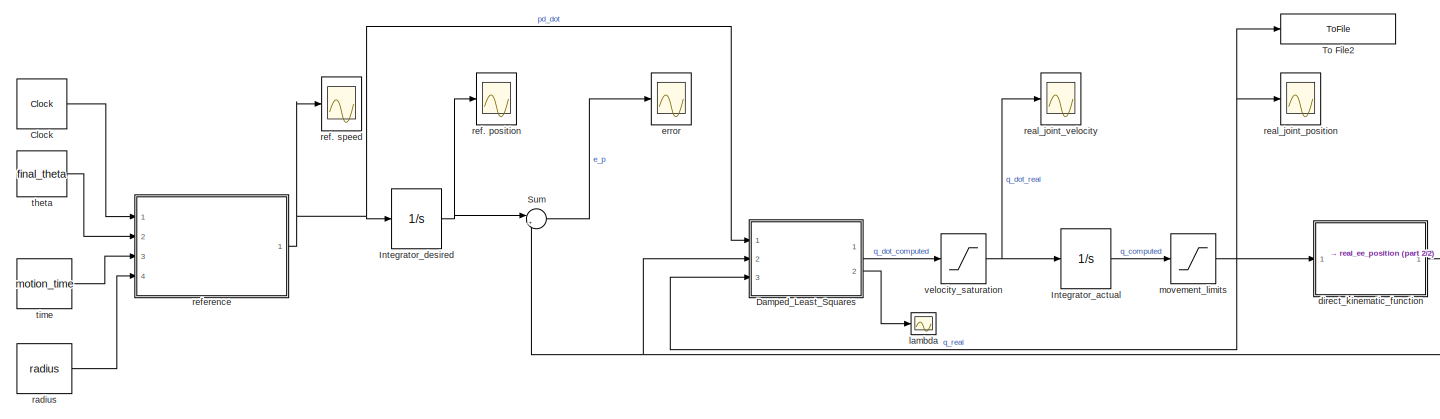
[diagram: root canvas - part 1/2, most of the canvas]
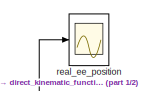
[diagram: root canvas - part 2/2, top right region]
MODEL slx_b3d0beb6caae
KIND model
CONFIG AbsTol = auto
CONFIG EnableMultiTasking = off
CONFIG FixedStep = step
CONFIG MaxStep = auto
CONFIG MinStep = auto
CONFIG RelTol = 1e-3
CONFIG SampleTimeConstraint = Unconstrained
CONFIG Solver = ode4
CONFIG SolverName = ode4
CONFIG StartTime = 0.0
CONFIG StopTime = t_sim
BLOCK [Clock] Clock
  DisplayTime = on
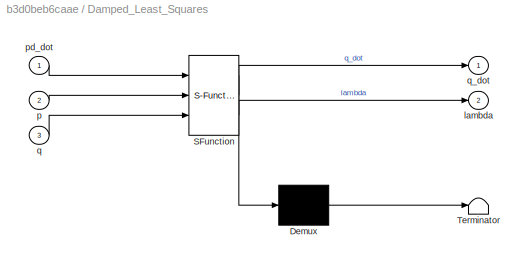
BLOCK [SubSystem] Damped_Least_Squares
  ErrorFcn = Stateflow.Translate.translate
  PermitHierarchicalResolution = ExplicitOnly
  Ports = [3, 2]
  RequestExecContextInheritance = off
  SFBlockType = MATLAB Function
  TreatAsAtomicUnit = on
  Variant = off
BLOCK [Demux] Damped_Least_Squares/ Demux 
  Outputs = 1
  Ports = [1, 1]
BLOCK [S-Function] Damped_Least_Squares/ SFunction 
  EnableBusSupport = on
  FunctionName = sf_sfun
  PortCounts = [3 3]
  Ports = [3, 3]
  SFcnIsStateOwnerBlock = off
  SFunctionDeploymentMode = off
  Tag = Stateflow S-Function simulazione_008_s 1
BLOCK [Terminator] Damped_Least_Squares/ Terminator 
BLOCK [Outport] Damped_Least_Squares/lambda
  IconDisplay = Port number
  Port = 2
BLOCK [Inport] Damped_Least_Squares/p
  IconDisplay = Port number
  Port = 2
BLOCK [Inport] Damped_Least_Squares/pd_dot
  IconDisplay = Port number
BLOCK [Inport] Damped_Least_Squares/q
  IconDisplay = Port number
  Port = 3
BLOCK [Outport] Damped_Least_Squares/q_dot
  IconDisplay = Port number
BLOCK [Integrator] Integrator_actual
  InitialCondition = q_init
  Ports = [1, 1]
BLOCK [Integrator] Integrator_desired
  InitialCondition = p_init
  Ports = [1, 1]
BLOCK [Sum] Sum
  IconShape = round
  InputSameDT = off
  Inputs = |+-
  OutDataTypeStr = Inherit: Inherit via internal rule
  Ports = [2, 1]
  SaturateOnIntegerOverflow = off
BLOCK [ToFile] To File2
  Filename = joint_position.mat
  MatrixName = q
  Ports = [1]
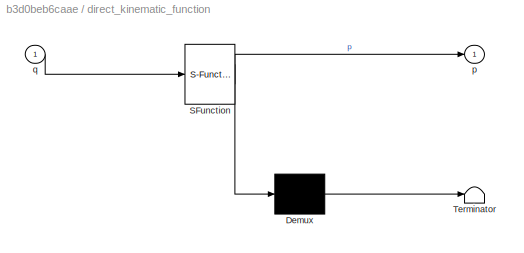
BLOCK [SubSystem] direct_kinematic_function
  ErrorFcn = Stateflow.Translate.translate
  PermitHierarchicalResolution = ExplicitOnly
  Ports = [1, 1]
  RequestExecContextInheritance = off
  SFBlockType = MATLAB Function
  TreatAsAtomicUnit = on
  Variant = off
BLOCK [Demux] direct_kinematic_function/ Demux 
  Outputs = 1
  Ports = [1, 1]
BLOCK [S-Function] direct_kinematic_function/ SFunction 
  EnableBusSupport = on
  FunctionName = sf_sfun
  PortCounts = [1 2]
  Ports = [1, 2]
  SFcnIsStateOwnerBlock = off
  SFunctionDeploymentMode = off
  Tag = Stateflow S-Function simulazione_008_s 3
BLOCK [Terminator] direct_kinematic_function/ Terminator 
BLOCK [Outport] direct_kinematic_function/p
  IconDisplay = Port number
BLOCK [Inport] direct_kinematic_function/q
  IconDisplay = Port number
BLOCK [Scope] error
  NumInputPorts = 1
  Ports = [1]
  ScopeSpecificationString = Simulink.scopes.TimeScopeBlockCfg('CurrentConfiguration', extmgr.ConfigurationSet(extmgr.Configuration('Core','General UI',true,'FigureColor',[1 1 1]),extmgr.Configuration('Core','Source UI',true),extmgr.Configuration('Sources','WiredSimulink',true,'DataLoggingVariableName','ScopeData1'),extmgr.Configuration('Visuals','Time Domain',true,'SerializedDisplays',{struct('MinYLimReal','-0.04718','MaxYLi...<+2266ch>
BLOCK [Scope] lambda
  NumInputPorts = 1
  Ports = [1]
  ScopeSpecificationString = Simulink.scopes.TimeScopeBlockCfg('CurrentConfiguration', extmgr.ConfigurationSet(extmgr.Configuration('Core','General UI',true,'FigureColor',[1 1 1]),extmgr.Configuration('Core','Source UI',true),extmgr.Configuration('Sources','WiredSimulink',true,'DataLoggingVariableName','ScopeData1'),extmgr.Configuration('Visuals','Time Domain',true,'SerializedDisplays',{struct('MinYLimReal','-0.000001','MaxYL...<+1578ch>
BLOCK [Saturate] movement_limits
  InputPortMap = u0
  LowerLimit = movement_lower_limit
  Ports = [1, 1]
  UpperLimit = movement_upper_limit
BLOCK [Constant] radius
  Value = radius
BLOCK [Scope] real_ee_position
  NumInputPorts = 1
  Ports = [1]
  ScopeSpecificationString = Simulink.scopes.TimeScopeBlockCfg('CurrentConfiguration', extmgr.ConfigurationSet(extmgr.Configuration('Core','General UI',true),extmgr.Configuration('Core','Source UI',true),extmgr.Configuration('Sources','WiredSimulink',true,'DataLoggingVariableName','ScopeData3'),extmgr.Configuration('Visuals','Time Domain',true,'SerializedDisplays',{struct('MinYLimReal','-3.92691','MaxYLimReal','3.92639','YLab...<+1605ch>
BLOCK [Scope] real_joint_position
  NumInputPorts = 1
  Ports = [1]
  ScopeSpecificationString = Simulink.scopes.TimeScopeBlockCfg('CurrentConfiguration', extmgr.ConfigurationSet(extmgr.Configuration('Core','General UI',true,'FigureColor',[0 0 0]),extmgr.Configuration('Core','Source UI',true),extmgr.Configuration('Sources','WiredSimulink',true,'DataLoggingVariableName','ScopeData1'),extmgr.Configuration('Visuals','Time Domain',true,'SerializedDisplays',{struct('MinYLimReal','-2.0525','MaxYLim...<+1538ch>
BLOCK [Scope] real_joint_velocity
  NumInputPorts = 1
  Ports = [1]
  ScopeSpecificationString = Simulink.scopes.TimeScopeBlockCfg('CurrentConfiguration', extmgr.ConfigurationSet(extmgr.Configuration('Core','General UI',true,'FigureColor',[1 1 1]),extmgr.Configuration('Core','Source UI',true),extmgr.Configuration('Sources','WiredSimulink',true,'DataLoggingVariableName','ScopeData2'),extmgr.Configuration('Visuals','Time Domain',true,'SerializedDisplays',{struct('MinYLimReal','-3.92699','MaxYLi...<+2256ch>
BLOCK [Scope] ref. position
  NumInputPorts = 1
  Ports = [1]
  ScopeSpecificationString = Simulink.scopes.TimeScopeBlockCfg('CurrentConfiguration', extmgr.ConfigurationSet(extmgr.Configuration('Core','General UI',true),extmgr.Configuration('Core','Source UI',true),extmgr.Configuration('Sources','WiredSimulink',true,'DataLoggingVariableName','ScopeData1'),extmgr.Configuration('Visuals','Time Domain',true,'SerializedDisplays',{struct('MinYLimReal','-2.89457','MaxYLimReal','3.00704','YLab...<+1538ch>
BLOCK [Scope] ref. speed
  NumInputPorts = 1
  Ports = [1]
  ScopeSpecificationString = Simulink.scopes.TimeScopeBlockCfg('CurrentConfiguration', extmgr.ConfigurationSet(extmgr.Configuration('Core','General UI',true),extmgr.Configuration('Core','Source UI',true),extmgr.Configuration('Sources','WiredSimulink',true),extmgr.Configuration('Visuals','Time Domain',true,'SerializedDisplays',{struct('MinYLimReal','-0.10527','MaxYLimReal','0.36076','YLabelReal','','MinYLimMag','0.00000','MaxY...<+1427ch>
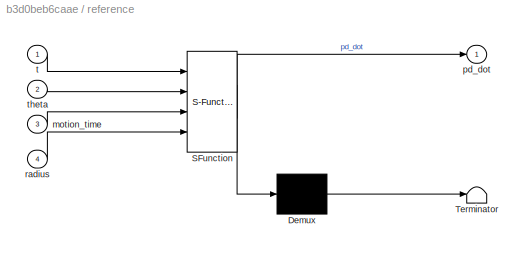
BLOCK [SubSystem] reference
  ErrorFcn = Stateflow.Translate.translate
  PermitHierarchicalResolution = ExplicitOnly
  Ports = [4, 1]
  RequestExecContextInheritance = off
  SFBlockType = MATLAB Function
  TreatAsAtomicUnit = on
  Variant = off
BLOCK [Demux] reference/ Demux 
  Outputs = 1
  Ports = [1, 1]
BLOCK [S-Function] reference/ SFunction 
  EnableBusSupport = on
  FunctionName = sf_sfun
  PortCounts = [4 2]
  Ports = [4, 2]
  SFcnIsStateOwnerBlock = off
  SFunctionDeploymentMode = off
  Tag = Stateflow S-Function simulazione_008_s 2
BLOCK [Terminator] reference/ Terminator 
BLOCK [Inport] reference/motion_time
  IconDisplay = Port number
  Port = 3
BLOCK [Outport] reference/pd_dot
  IconDisplay = Port number
BLOCK [Inport] reference/radius
  IconDisplay = Port number
  Port = 4
BLOCK [Inport] reference/t
  IconDisplay = Port number
BLOCK [Inport] reference/theta
  IconDisplay = Port number
  Port = 2
BLOCK [Constant] theta
  Value = final_theta
BLOCK [Constant] time
  Value = motion_time
BLOCK [Saturate] velocity_saturation
  InputPortMap = u0
  LowerLimit = velocity_lower_limit
  Ports = [1, 1]
  UpperLimit = velocity_upper_limit
LINE Clock:1 -> reference:1
LINE Damped_Least_Squares:1 -> velocity_saturation:1
LINE Damped_Least_Squares:2 -> lambda:1
LINE Integrator_actual:1 -> movement_limits:1
NET Integrator_desired:1 -> Sum:1, ref. position:1
LINE Sum:1 -> error:1
NET direct_kinematic_function:1 -> Damped_Least_Squares:2, Sum:2, real_ee_position:1
NET movement_limits:1 -> Damped_Least_Squares:3, To File2:1, direct_kinematic_function:1, real_joint_position:1
LINE radius:1 -> reference:4
NET reference:1 -> Damped_Least_Squares:1, Integrator_desired:1, ref. speed:1
LINE theta:1 -> reference:2
LINE time:1 -> reference:3
NET velocity_saturation:1 -> Integrator_actual:1, real_joint_velocity:1
note: NET lines group one-source signal fan-out (src -> all destinations, sorted); 1:1 wires keep LINE
CHART Damped_Least_Squares states=1 transitions=1
  STATE_LABEL 'eML_blk_kernel()'
  STATE_LABEL 'SCRIPT:\nfunction [q_dot, lambda] = dls(pd_dot, p, q)\n\n    Jg = geometric_jacobian(q);\n    Ja = analytic_jacobian(Jg, p);\n    \n    s = svd(Ja);\n    sigma_th = 1/pi;\n    sigma = s(6);\n    lambda_max = 0.00008;\n    \n    if sigma >= sigma_th \n        lambda = 0; \n    else\n        lambda = lambda_max - lambda_max * sigma / sigma_th;\n    end\n    \n    q_dot = transpose(Ja) * inv(Ja * transpose(Ja) + lamb...<+31ch>'
CHART reference states=1 transitions=1
  STATE_LABEL 'eML_blk_kernel()'
  STATE_LABEL 'SCRIPT:\nfunction pd_dot = reference(t, theta, motion_time, radius)\n\n    pd_dot = rotational_reference(t, theta, motion_time, radius);\n    \nend'
CHART direct_kinematic_function states=1 transitions=1
  STATE_LABEL 'eML_blk_kernel()'
  STATE_LABEL 'SCRIPT:\nfunction p = dkf(q)\n\n    p = direct_kinematic(q);\n    '
